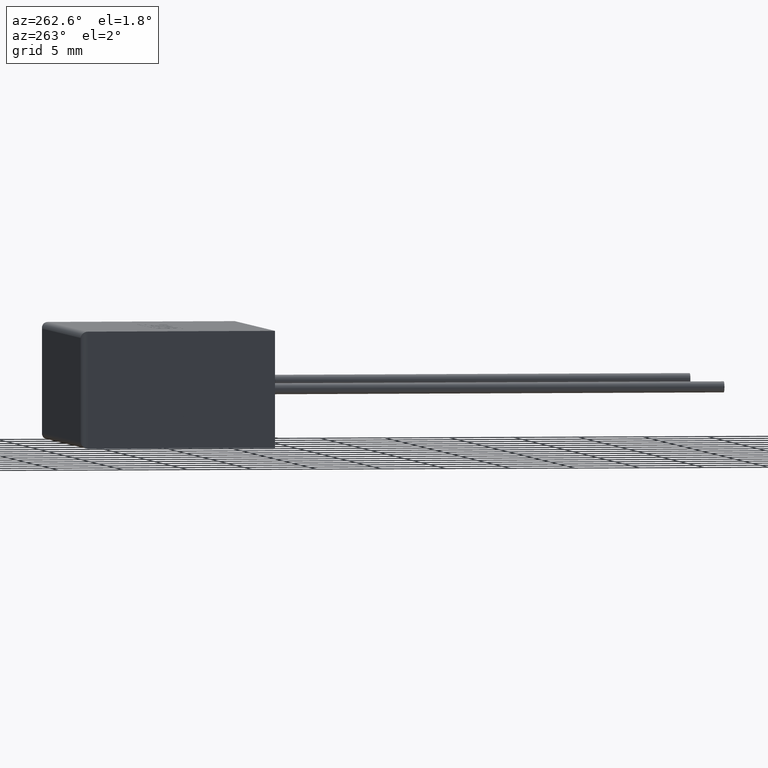
[diagram: clean part render]
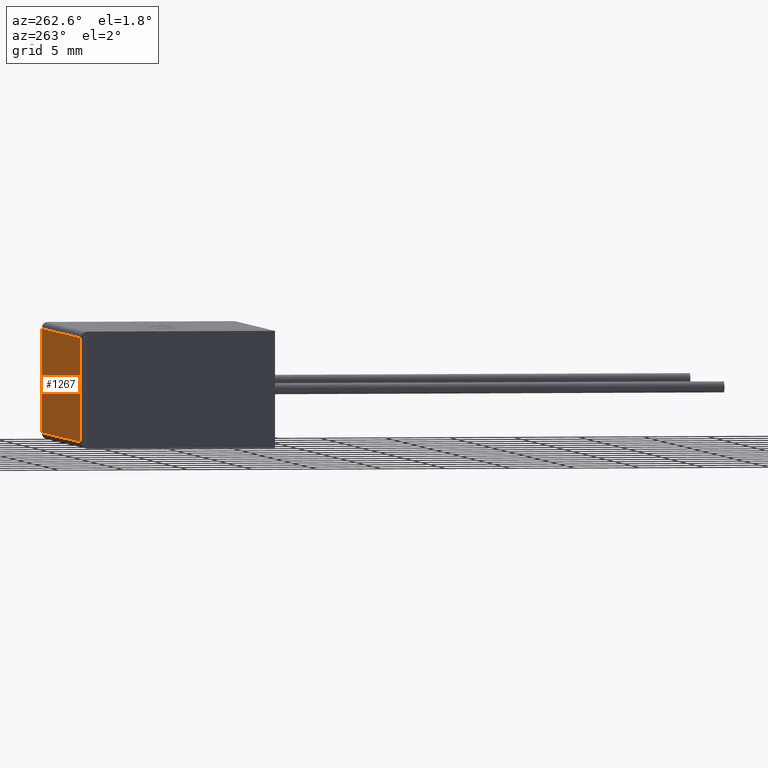
[diagram: same view with one face highlighted and labeled with its STEP entity id]
A machine part, auxiliary view. The second image highlights one B-rep face of the part: STEP entity #1267.
In plain terms, the highlighted planar face has unit normal (0, -1, 0).
Its self-contained STEP definition (entity closure, byte-faithful):
#12 = CARTESIAN_POINT ( 'NONE',  ( 23.50000000000000000, 15.00000000000000000, 9.000000000000000000 ) ) ;
#51 = VERTEX_POINT ( 'NONE', #140 ) ;
#70 = VECTOR ( 'NONE', #756, 1000.000000000000000 ) ;
#140 = CARTESIAN_POINT ( 'NONE',  ( 0.5000000000000000000, 15.00000000000000000, 8.499999999999998200 ) ) ;
#243 = CARTESIAN_POINT ( 'NONE',  ( 0.0000000000000000000, 15.00000000000000000, 0.5000000000000004400 ) ) ;
#391 = ORIENTED_EDGE ( 'NONE', *, *, #1585, .T. ) ;
#427 = VECTOR ( 'NONE', #818, 1000.000000000000000 ) ;
#457 = LINE ( 'NONE', #243, #427 ) ;
#493 = PLANE ( 'NONE',  #2238 ) ;
#522 = CARTESIAN_POINT ( 'NONE',  ( 0.5000000000000000000, 15.00000000000000000, 0.5000000000000004400 ) ) ;
#756 = DIRECTION ( 'NONE',  ( 0.0000000000000000000, 0.0000000000000000000, -1.000000000000000000 ) ) ;
#818 = DIRECTION ( 'NONE',  ( -1.000000000000000000, 0.0000000000000000000, 0.0000000000000000000 ) ) ;
#847 = CARTESIAN_POINT ( 'NONE',  ( 0.5000000000000000000, 15.00000000000000000, 9.000000000000000000 ) ) ;
#953 = VECTOR ( 'NONE', #1414, 1000.000000000000000 ) ;
#1082 = LINE ( 'NONE', #847, #953 ) ;
#1105 = VERTEX_POINT ( 'NONE', #2354 ) ;
#1158 = ORIENTED_EDGE ( 'NONE', *, *, #2142, .T. ) ;
#1234 = CARTESIAN_POINT ( 'NONE',  ( 0.0000000000000000000, 15.00000000000000000, 9.000000000000000000 ) ) ;
#1267 = ADVANCED_FACE ( 'NONE', ( #1349 ), #493, .F. ) ;
#1274 = VERTEX_POINT ( 'NONE', #522 ) ;
#1285 = LINE ( 'NONE', #12, #70 ) ;
#1349 = FACE_OUTER_BOUND ( 'NONE', #2066, .T. ) ;
#1414 = DIRECTION ( 'NONE',  ( -0.0000000000000000000, -0.0000000000000000000, 1.000000000000000000 ) ) ;
#1444 = DIRECTION ( 'NONE',  ( 0.0000000000000000000, -1.000000000000000000, 0.0000000000000000000 ) ) ;
#1548 = ORIENTED_EDGE ( 'NONE', *, *, #2428, .T. ) ;
#1576 = ORIENTED_EDGE ( 'NONE', *, *, #2183, .T. ) ;
#1585 = EDGE_CURVE ( 'NONE', #1105, #1274, #457, .T. ) ;
#1769 = VERTEX_POINT ( 'NONE', #1841 ) ;
#1841 = CARTESIAN_POINT ( 'NONE',  ( 23.50000000000000000, 15.00000000000000000, 8.499999999999998200 ) ) ;
#1900 = DIRECTION ( 'NONE',  ( 1.000000000000000000, -0.0000000000000000000, -0.0000000000000000000 ) ) ;
#1920 = CARTESIAN_POINT ( 'NONE',  ( 0.0000000000000000000, 15.00000000000000000, 8.499999999999998200 ) ) ;
#1982 = LINE ( 'NONE', #1920, #2439 ) ;
#2066 = EDGE_LOOP ( 'NONE', ( #1576, #1158, #391, #1548 ) ) ;
#2142 = EDGE_CURVE ( 'NONE', #1769, #1105, #1285, .T. ) ;
#2183 = EDGE_CURVE ( 'NONE', #51, #1769, #1982, .T. ) ;
#2222 = DIRECTION ( 'NONE',  ( 0.0000000000000000000, -0.0000000000000000000, -1.000000000000000000 ) ) ;
#2238 = AXIS2_PLACEMENT_3D ( 'NONE', #1234, #1444, #2222 ) ;
#2354 = CARTESIAN_POINT ( 'NONE',  ( 23.50000000000000000, 15.00000000000000000, 0.5000000000000004400 ) ) ;
#2428 = EDGE_CURVE ( 'NONE', #1274, #51, #1082, .T. ) ;
#2439 = VECTOR ( 'NONE', #1900, 1000.000000000000000 ) ;